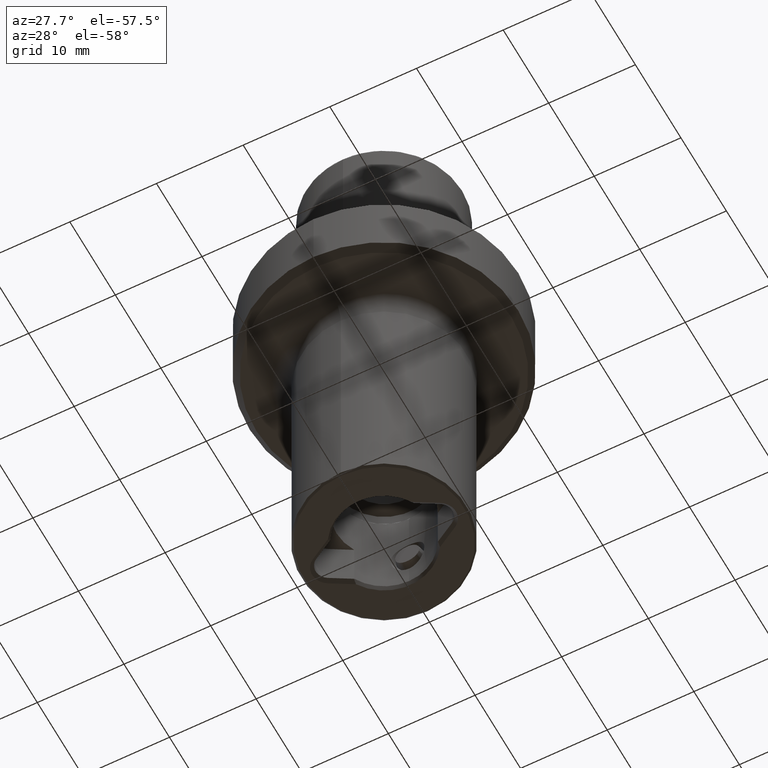
[diagram: clean part render]
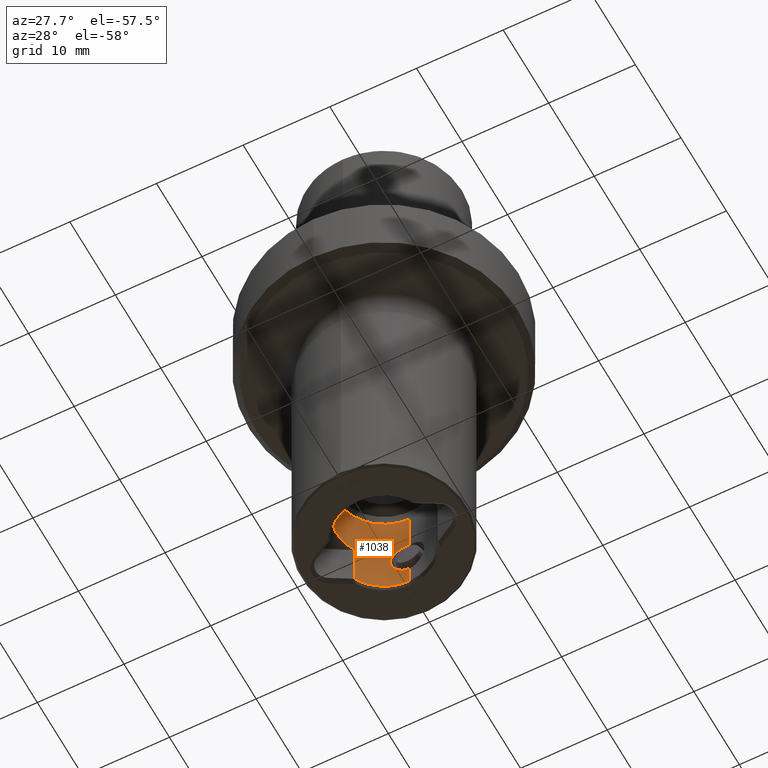
[diagram: same view with one face highlighted and labeled with its STEP entity id]
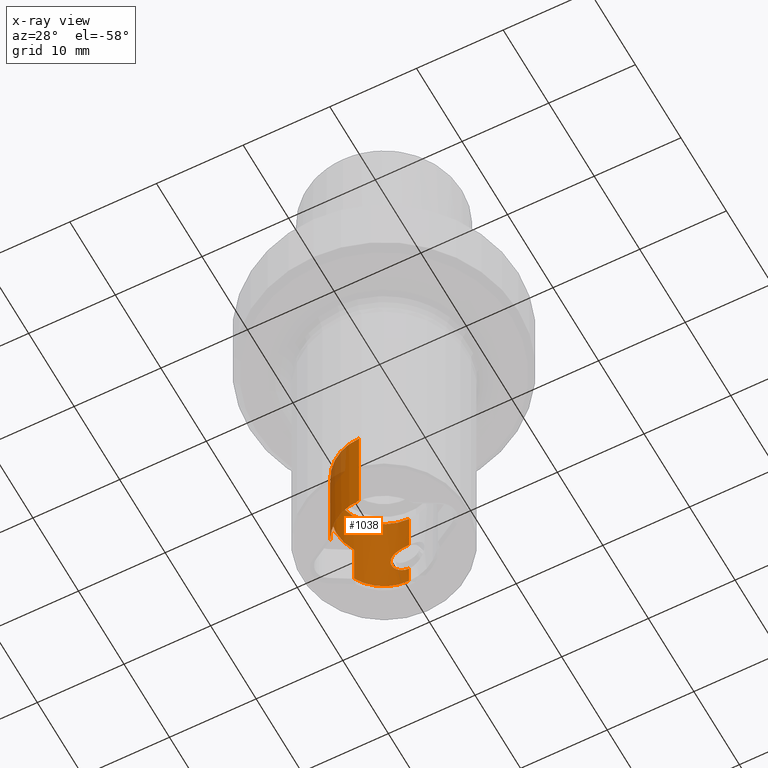
[diagram: x-ray of the same camera — body ghosted, the highlighted face saturated]
A machine part, auxiliary view. The second image highlights one B-rep face of the part: STEP entity #1038.
The next image is the same camera in x-ray: the body ghosted, the highlighted face saturated — about 7% of this face is hidden behind the body in this view.
In plain terms, the highlighted cylindrical surface (partial cylindrical patch) has radius 5.5 mm, axis along (-0, -0, -1).
Its self-contained STEP definition (entity closure, byte-faithful):
#706=EDGE_CURVE('NONE',#1532,#1374,#2018,.T.);
#710=VERTEX_POINT('NONE',#2023);
#750=EDGE_CURVE('NONE',#858,#1374,#2066,.T.);
#852=EDGE_CURVE('NONE',#710,#1854,#2182,.T.);
#858=VERTEX_POINT('NONE',#2188);
#1038=ADVANCED_FACE('NONE',(#2387),#2388,.F.);
#1050=VERTEX_POINT('NONE',#2401);
#1056=EDGE_CURVE('NONE',#1246,#1532,#2408,.T.);
#1106=EDGE_CURVE('NONE',#1512,#1180,#2459,.T.);
#1110=VERTEX_POINT('NONE',#2463);
#1180=VERTEX_POINT('NONE',#2541);
#1216=EDGE_CURVE('NONE',#1180,#1546,#2582,.F.);
#1246=VERTEX_POINT('NONE',#2617);
#1264=EDGE_CURVE('NONE',#1110,#1618,#2639,.F.);
#1278=EDGE_CURVE('NONE',#710,#1246,#2656,.T.);
#1374=VERTEX_POINT('NONE',#2760);
#1452=EDGE_CURVE('NONE',#1050,#1854,#2845,.F.);
#1504=EDGE_CURVE('NONE',#1512,#858,#2906,.T.);
#1512=VERTEX_POINT('NONE',#2918);
#1532=VERTEX_POINT('NONE',#2940);
#1546=VERTEX_POINT('NONE',#2955);
#1618=VERTEX_POINT('NONE',#3037);
#1810=EDGE_CURVE('NONE',#1546,#1618,#3252,.F.);
#1854=VERTEX_POINT('NONE',#3301);
#1902=EDGE_CURVE('NONE',#1110,#1050,#3352,.F.);
#2018=LINE('',#3478,#3479);
#2023=CARTESIAN_POINT('',(0.0,-5.5,-28.2834936490539));
#2066=B_SPLINE_CURVE_WITH_KNOTS('',3,(#3592,#3593,#3594,#3595),.UNSPECIFIED.,.F.,.F.,(4,4),(0.00663490333370878,0.00663534725042632),.UNSPECIFIED.);
#2182=LINE('',#3875,#3876);
#2188=CARTESIAN_POINT('',(-0.000442807126124747,5.49999998217471,-33.199999977043));
#2387=FACE_OUTER_BOUND('',#4181,.T.);
#2388=CYLINDRICAL_SURFACE('',#4182,5.5);
#2401=CARTESIAN_POINT('',(-4.82847385113184,-2.63359834996456,-40.0803847577293));
#2408=CIRCLE('',#4217,5.5);
#2459=LINE('',#4349,#4350);
#2463=CARTESIAN_POINT('',(-4.82847385113184,-2.63359834996456,-34.6));
#2541=CARTESIAN_POINT('',(-6.73533494602307E-016,5.5,-40.0803847577293));
#2582=CIRCLE('',#4611,5.5);
#2617=CARTESIAN_POINT('',(-5.5,6.88841074025087E-016,-28.2834936490539));
#2639=CIRCLE('',#4823,5.5);
#2656=CIRCLE('',#4841,5.5);
#2760=CARTESIAN_POINT('',(1.34201782580603E-016,5.5,-33.1999999689245));
#2845=CIRCLE('',#5180,5.5);
#2906=B_SPLINE_CURVE_WITH_KNOTS('',3,(#5258,#5259,#5260,#5261,#5262,#5263,#5264,#5265,#5266,#5267,#5268,#5269,#5270,#5271,#5272,#5273,#5274,#5275,#5276,#5277,#5278,#5279,#5280,#5281,#5282,#5283,#5284,#5285,#5286,#5287,#5288,#5289),.UNSPECIFIED.,.F.,.F.,(4,2,2,2,2,2,2,2,2,2,2,2,2,2,2,4),(1.08283156344797E-018,0.000414681458356793,0.000829362916713585,0.00124404437507038,0.00165872583342717,0.00248808875014075,0.00290277020849756,0.00331745166685436,0.00373213312521116,0.00414681458356796,0.00456149604192476,0.00497617750028157,0.00539085895863837,0.00580554041699517,0.00622022187535198,0.00663490333370878),.UNSPECIFIED.);
#2918=CARTESIAN_POINT('',(-9.821293574537E-016,5.5,-37.7000000804591));
#2940=CARTESIAN_POINT('',(-6.73533494602307E-016,5.5,-28.2834936490539));
#2955=CARTESIAN_POINT('',(-4.82847385113184,2.63359834996456,-40.0803847577293));
#3037=CARTESIAN_POINT('',(-4.82847385113184,2.63359834996456,-34.6));
#3252=LINE('',#5978,#5979);
#3301=CARTESIAN_POINT('',(0.0,-5.5,-40.0803847577293));
#3352=LINE('',#6220,#6221);
#3478=CARTESIAN_POINT('',(-6.73533494602307E-016,5.5,-41.5035047551955));
#3479=VECTOR('',#6355,1000.0);
#3592=CARTESIAN_POINT('',(-0.000442807126124747,5.49999998217471,-33.199999977043));
#3593=CARTESIAN_POINT('',(-0.000295203855816034,5.49999999667065,-33.1999999562575));
#3594=CARTESIAN_POINT('',(-0.000147601479280705,5.50000000052292,-33.199999951463));
#3595=CARTESIAN_POINT('',(1.34201782580603E-016,5.5,-33.1999999689245));
#3875=CARTESIAN_POINT('',(0.0,-5.5,-41.5035047551955));
#3876=VECTOR('',#6548,1000.0);
#4181=EDGE_LOOP('',(#6783,#6784,#6785,#6786,#6787,#6788,#6789,#6790,#6791,#6792,#6793,#6794));
#4182=AXIS2_PLACEMENT_3D('',#6795,#6796,#6797);
#4217=AXIS2_PLACEMENT_3D('',#6817,#6818,#6819);
#4349=CARTESIAN_POINT('',(-6.73533494602307E-016,5.5,-41.5035047551955));
#4350=VECTOR('',#6859,1000.0);
#4611=AXIS2_PLACEMENT_3D('',#7027,#7028,#7029);
#4823=AXIS2_PLACEMENT_3D('',#7109,#7110,#7111);
#4841=AXIS2_PLACEMENT_3D('',#7132,#7133,#7134);
#5180=AXIS2_PLACEMENT_3D('',#7323,#7324,#7325);
#5258=CARTESIAN_POINT('',(-9.821293574537E-016,5.5,-37.7000000804591));
#5259=CARTESIAN_POINT('',(-0.140416977144214,5.5,-37.7000794540873));
#5260=CARTESIAN_POINT('',(-0.277407631917633,5.49464470759499,-37.6816860564229));
#5261=CARTESIAN_POINT('',(-0.545544065462246,5.47452802802092,-37.61346665912));
#5262=CARTESIAN_POINT('',(-0.676657042890383,5.45961770706914,-37.5630865947892));
#5263=CARTESIAN_POINT('',(-0.921341113353038,5.42369070042545,-37.4375832317857));
#5264=CARTESIAN_POINT('',(-1.03775193082382,5.40229821820428,-37.361088289272));
#5265=CARTESIAN_POINT('',(-1.24985295364534,5.35720288047837,-37.1875669778892));
#5266=CARTESIAN_POINT('',(-1.34561708379698,5.33359590933143,-37.09058332033));
#5267=CARTESIAN_POINT('',(-1.60357078906459,5.26405579049384,-36.7694435997126));
#5268=CARTESIAN_POINT('',(-1.73445614688537,5.22019020909771,-36.5240045366067));
#5269=CARTESIAN_POINT('',(-1.86664312537551,5.17376308199798,-36.1301946768392));
#5270=CARTESIAN_POINT('',(-1.89937633741462,5.16167747035199,-35.9964921654495));
#5271=CARTESIAN_POINT('',(-1.94311664521468,5.14537097614541,-35.7243262893667));
#5272=CARTESIAN_POINT('',(-1.95406319554986,5.14117079407426,-35.5846208808972));
#5273=CARTESIAN_POINT('',(-1.95345438318436,5.14140215105398,-35.3065150047481));
#5274=CARTESIAN_POINT('',(-1.94206584447063,5.14577014502522,-35.1690125862759));
#5275=CARTESIAN_POINT('',(-1.897314372094,5.16243821300922,-34.8970591553571));
#5276=CARTESIAN_POINT('',(-1.86350952170041,5.17489572951332,-34.7613666752519));
#5277=CARTESIAN_POINT('',(-1.77470860662813,5.20601795140617,-34.4999309199769));
#5278=CARTESIAN_POINT('',(-1.72013588545751,5.22453623950906,-34.3745465744777));
#5279=CARTESIAN_POINT('',(-1.59012660875045,5.26556205456986,-34.1343977772418));
#5280=CARTESIAN_POINT('',(-1.51366753673067,5.28835489602533,-34.0184129743716));
#5281=CARTESIAN_POINT('',(-1.34214116642121,5.33446754676274,-33.8055174108403));
#5282=CARTESIAN_POINT('',(-1.24683074193525,5.35788924315712,-33.7093518806939));
#5283=CARTESIAN_POINT('',(-1.03644253590083,5.40253189817044,-33.5375941804389));
#5284=CARTESIAN_POINT('',(-0.919713738432692,5.42396845227355,-33.4609632076653));
#5285=CARTESIAN_POINT('',(-0.674883495296901,5.45983877048549,-33.3358514457402));
#5286=CARTESIAN_POINT('',(-0.546929572828455,5.47439156588449,-33.2868123393218));
#5287=CARTESIAN_POINT('',(-0.278653251332741,5.49458345461994,-33.2185233722952));
#5288=CARTESIAN_POINT('',(-0.138324704361371,5.49998888124972,-33.2000218338896));
#5289=CARTESIAN_POINT('',(-0.000442807126124747,5.49999998217471,-33.199999977043));
#5978=CARTESIAN_POINT('',(-4.82847385113184,2.63359834996456,-41.5035047551955));
#5979=VECTOR('',#7882,1.0);
#6220=CARTESIAN_POINT('',(-4.82847385113184,-2.63359834996456,-41.5035047551955));
#6221=VECTOR('',#8009,1.0);
#6355=DIRECTION('',(0.0,0.0,-1.0));
#6548=DIRECTION('',(0.0,0.0,-1.0));
#6783=ORIENTED_EDGE('',*,*,#706,.F.);
#6784=ORIENTED_EDGE('',*,*,#1056,.F.);
#6785=ORIENTED_EDGE('',*,*,#1278,.F.);
#6786=ORIENTED_EDGE('',*,*,#852,.T.);
#6787=ORIENTED_EDGE('',*,*,#1452,.F.);
#6788=ORIENTED_EDGE('',*,*,#1902,.F.);
#6789=ORIENTED_EDGE('',*,*,#1264,.T.);
#6790=ORIENTED_EDGE('',*,*,#1810,.F.);
#6791=ORIENTED_EDGE('',*,*,#1216,.F.);
#6792=ORIENTED_EDGE('',*,*,#1106,.F.);
#6793=ORIENTED_EDGE('',*,*,#1504,.T.);
#6794=ORIENTED_EDGE('',*,*,#750,.T.);
#6795=CARTESIAN_POINT('',(0.0,0.0,-41.5035047551955));
#6796=DIRECTION('',(-0.0,-0.0,-1.0));
#6797=DIRECTION('',(0.0,-1.0,0.0));
#6817=CARTESIAN_POINT('',(0.0,0.0,-28.2834936490539));
#6818=DIRECTION('',(0.0,0.0,-1.0));
#6819=DIRECTION('',(0.0,-1.0,0.0));
#6859=DIRECTION('',(0.0,0.0,-1.0));
#7027=CARTESIAN_POINT('',(0.0,0.0,-40.0803847577293));
#7028=DIRECTION('',(0.0,0.0,-1.0));
#7029=DIRECTION('',(0.0,-1.0,0.0));
#7109=CARTESIAN_POINT('',(0.0,0.0,-34.6));
#7110=DIRECTION('',(-0.0,0.0,1.0));
#7111=DIRECTION('',(0.0,-1.0,0.0));
#7132=CARTESIAN_POINT('',(0.0,0.0,-28.2834936490539));
#7133=DIRECTION('',(0.0,0.0,-1.0));
#7134=DIRECTION('',(0.0,-1.0,0.0));
#7323=CARTESIAN_POINT('',(0.0,0.0,-40.0803847577293));
#7324=DIRECTION('',(0.0,0.0,-1.0));
#7325=DIRECTION('',(0.0,-1.0,0.0));
#7882=DIRECTION('',(0.0,0.0,-1.0));
#8009=DIRECTION('',(0.0,0.0,1.0));